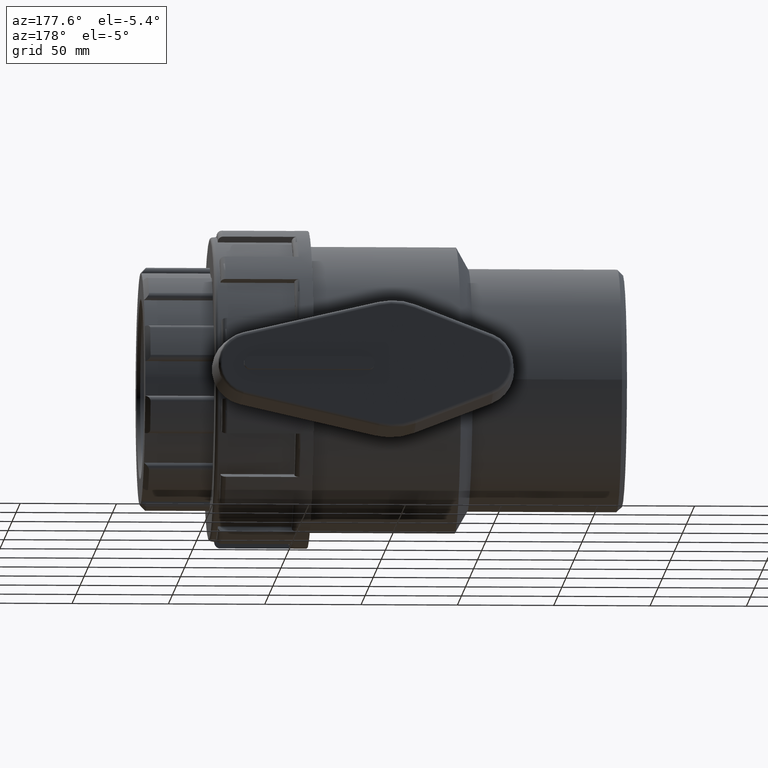
[diagram: clean part render]
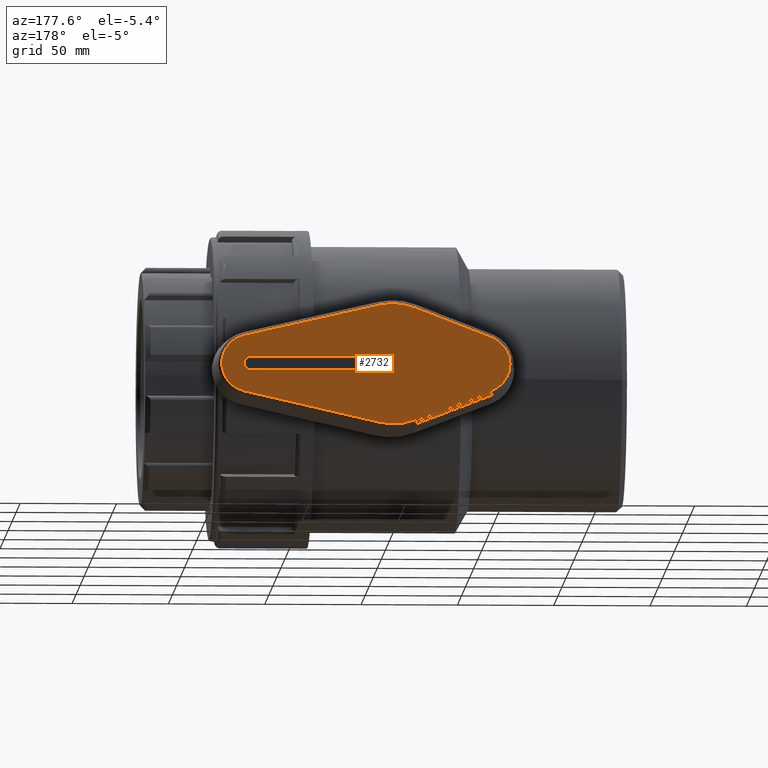
[diagram: same view with one face highlighted and labeled with its STEP entity id]
A machine part, auxiliary view. The second image highlights one B-rep face of the part: STEP entity #2732.
In plain terms, the highlighted planar face has unit normal (-0, 1, 0).
Its self-contained STEP definition (entity closure, byte-faithful):
#15=FACE_BOUND('',#376,.T.);
#41=PLANE('',#2984);
#209=FACE_OUTER_BOUND('',#375,.T.);
#375=EDGE_LOOP('',(#2018,#2019,#2020,#2021,#2022,#2023,#2024,#2025));
#376=EDGE_LOOP('',(#2026,#2027,#2028,#2029));
#575=CIRCLE('',#2959,14.7918637799132);
#579=CIRCLE('',#2965,31.2918637799132);
#583=CIRCLE('',#2971,14.7918637799132);
#586=CIRCLE('',#2976,31.2918637799132);
#590=CIRCLE('',#2985,3.3);
#591=CIRCLE('',#2986,3.3);
#730=LINE('',#4538,#894);
#731=LINE('',#4549,#895);
#733=LINE('',#4561,#897);
#735=LINE('',#4573,#899);
#744=LINE('',#4601,#908);
#745=LINE('',#4604,#909);
#894=VECTOR('',#3465,72.2396013278036);
#895=VECTOR('',#3478,72.2396013278036);
#897=VECTOR('',#3492,42.8317639141794);
#899=VECTOR('',#3506,42.8317639141794);
#908=VECTOR('',#3537,61.2);
#909=VECTOR('',#3540,61.2);
#1166=VERTEX_POINT('',#4531);
#1169=VERTEX_POINT('',#4536);
#1171=VERTEX_POINT('',#4541);
#1173=VERTEX_POINT('',#4547);
#1175=VERTEX_POINT('',#4553);
#1177=VERTEX_POINT('',#4559);
#1179=VERTEX_POINT('',#4565);
#1181=VERTEX_POINT('',#4571);
#1187=VERTEX_POINT('',#4597);
#1188=VERTEX_POINT('',#4598);
#1189=VERTEX_POINT('',#4600);
#1190=VERTEX_POINT('',#4602);
#1491=EDGE_CURVE('',#1169,#1166,#730,.T.);
#1493=EDGE_CURVE('',#1171,#1169,#575,.T.);
#1496=EDGE_CURVE('',#1173,#1171,#731,.T.);
#1499=EDGE_CURVE('',#1175,#1173,#579,.T.);
#1502=EDGE_CURVE('',#1177,#1175,#733,.T.);
#1505=EDGE_CURVE('',#1179,#1177,#583,.T.);
#1508=EDGE_CURVE('',#1181,#1179,#735,.T.);
#1510=EDGE_CURVE('',#1166,#1181,#586,.T.);
#1521=EDGE_CURVE('',#1187,#1188,#590,.T.);
#1522=EDGE_CURVE('',#1188,#1189,#744,.T.);
#1523=EDGE_CURVE('',#1189,#1190,#591,.T.);
#1524=EDGE_CURVE('',#1190,#1187,#745,.T.);
#2018=ORIENTED_EDGE('',*,*,#1491,.F.);
#2019=ORIENTED_EDGE('',*,*,#1493,.F.);
#2020=ORIENTED_EDGE('',*,*,#1496,.F.);
#2021=ORIENTED_EDGE('',*,*,#1499,.F.);
#2022=ORIENTED_EDGE('',*,*,#1502,.F.);
#2023=ORIENTED_EDGE('',*,*,#1505,.F.);
#2024=ORIENTED_EDGE('',*,*,#1508,.F.);
#2025=ORIENTED_EDGE('',*,*,#1510,.F.);
#2026=ORIENTED_EDGE('',*,*,#1521,.T.);
#2027=ORIENTED_EDGE('',*,*,#1522,.T.);
#2028=ORIENTED_EDGE('',*,*,#1523,.T.);
#2029=ORIENTED_EDGE('',*,*,#1524,.T.);
#2732=ADVANCED_FACE('',(#209,#15),#41,.T.);
#2959=AXIS2_PLACEMENT_3D('',#4543,#3470,#3471);
#2965=AXIS2_PLACEMENT_3D('',#4555,#3484,#3485);
#2971=AXIS2_PLACEMENT_3D('',#4567,#3498,#3499);
#2976=AXIS2_PLACEMENT_3D('',#4576,#3510,#3511);
#2984=AXIS2_PLACEMENT_3D('',#4596,#3533,#3534);
#2985=AXIS2_PLACEMENT_3D('',#4599,#3535,#3536);
#2986=AXIS2_PLACEMENT_3D('',#4603,#3538,#3539);
#3465=DIRECTION('',(-0.974893405233517,-2.93850435758952E-16,0.222672064777328));
#3470=DIRECTION('center_axis',(3.01418015735337E-16,-1.,0.));
#3471=DIRECTION('ref_axis',(1.,3.01418015735337E-16,-3.33066907387547E-16));
#3478=DIRECTION('',(0.974893405233517,2.93850435758952E-16,0.222672064777328));
#3484=DIRECTION('center_axis',(3.01418015735337E-16,-1.,0.));
#3485=DIRECTION('ref_axis',(-0.071515401750952,-2.15560304902874E-17,-0.997439495564718));
#3492=DIRECTION('',(0.933153897912405,2.81269396284452E-16,-0.359477124183006));
#3498=DIRECTION('center_axis',(3.01418015735337E-16,-1.,0.));
#3499=DIRECTION('ref_axis',(-1.,-3.01418015735337E-16,1.22464679914735E-16));
#3506=DIRECTION('',(-0.933153897912405,-2.81269396284452E-16,-0.359477124183006));
#3510=DIRECTION('center_axis',(3.01418015735337E-16,-1.,0.));
#3511=DIRECTION('ref_axis',(-0.071515401750952,-2.15560304902874E-17,0.997439495564718));
#3533=DIRECTION('center_axis',(-3.01418015735337E-16,1.,0.));
#3534=DIRECTION('ref_axis',(0.,0.,1.));
#3535=DIRECTION('center_axis',(3.01418015735337E-16,-1.,0.));
#3536=DIRECTION('ref_axis',(3.99343917647262E-16,0.,1.));
#3537=DIRECTION('',(-1.,-3.01418015735337E-16,1.94442265822128E-16));
#3538=DIRECTION('center_axis',(3.01418015735337E-16,-1.,0.));
#3539=DIRECTION('ref_axis',(-2.76076311750449E-16,0.,-1.));
#3540=DIRECTION('',(1.,3.01418015735337E-16,-3.21428559488404E-16));
#4531=CARTESIAN_POINT('',(6.96782391860414,146.,30.5062316365029));
#4536=CARTESIAN_POINT('',(77.3937348497782,146.,14.4204904501499));
#4538=CARTESIAN_POINT('',(6.96782391860414,146.,30.5062316365029));
#4541=CARTESIAN_POINT('',(77.3937348497782,146.,-14.4204904501499));
#4543=CARTESIAN_POINT('Origin',(74.1,146.,0.));
#4547=CARTESIAN_POINT('',(6.96782391860414,146.,-30.5062316365029));
#4549=CARTESIAN_POINT('',(42.1807793841912,146.,-22.4633610433264));
#4553=CARTESIAN_POINT('',(-11.2487092019296,146.,-29.20012465917));
#4555=CARTESIAN_POINT('Origin',(-1.66483905526803E-14,146.,0.));
#4559=CARTESIAN_POINT('',(-51.21733665291,146.,-13.8030853436153));
#4561=CARTESIAN_POINT('',(-11.2487092019296,146.,-29.20012465917));
#4565=CARTESIAN_POINT('',(-51.21733665291,146.,13.8030853436153));
#4567=CARTESIAN_POINT('Origin',(-45.9,146.,0.));
#4571=CARTESIAN_POINT('',(-11.2487092019296,146.,29.20012465917));
#4573=CARTESIAN_POINT('',(-31.2330229274198,146.,21.5016050013927));
#4576=CARTESIAN_POINT('Origin',(-1.66483905526803E-14,146.,0.));
#4596=CARTESIAN_POINT('Origin',(-1.77635683940025E-14,146.,0.));
#4597=CARTESIAN_POINT('',(74.1,146.,-3.3));
#4598=CARTESIAN_POINT('',(74.1,146.,3.3));
#4599=CARTESIAN_POINT('Origin',(74.1,146.,0.));
#4600=CARTESIAN_POINT('',(12.8999999999999,146.,3.30000000000002));
#4601=CARTESIAN_POINT('',(6.44999999999996,146.,3.30000000000002));
#4602=CARTESIAN_POINT('',(12.8999999999999,146.,-3.29999999999998));
#4603=CARTESIAN_POINT('Origin',(12.8999999999999,146.,1.68958702791275E-14));
#4604=CARTESIAN_POINT('',(37.05,146.,-3.29999999999999));